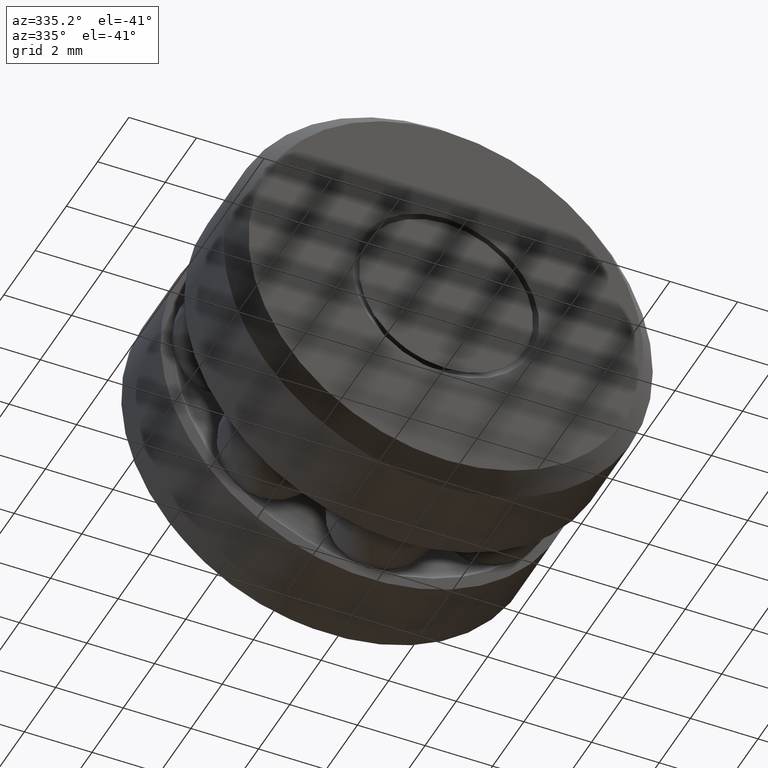
[diagram: clean part render]
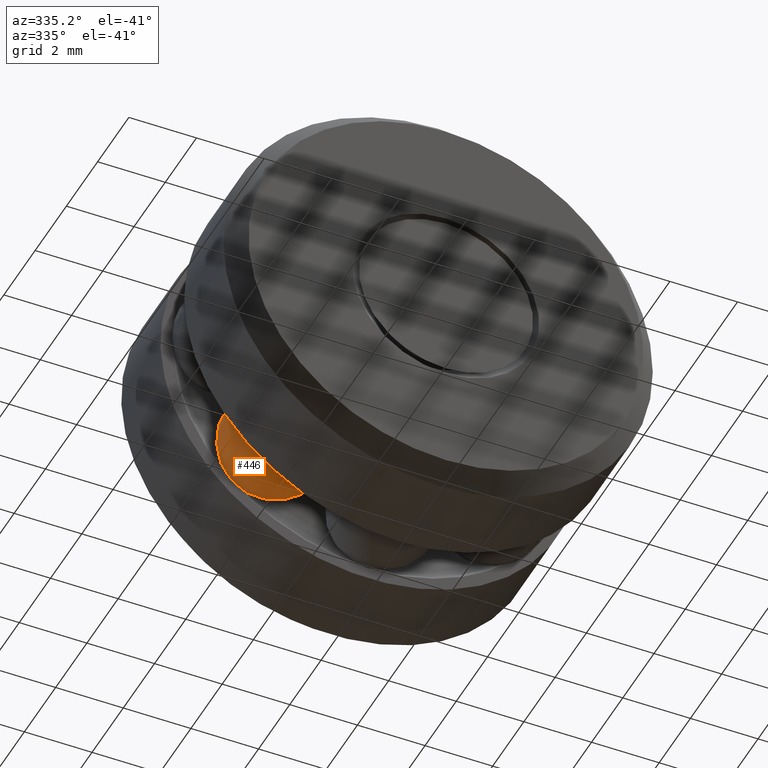
[diagram: same view with one face highlighted and labeled with its STEP entity id]
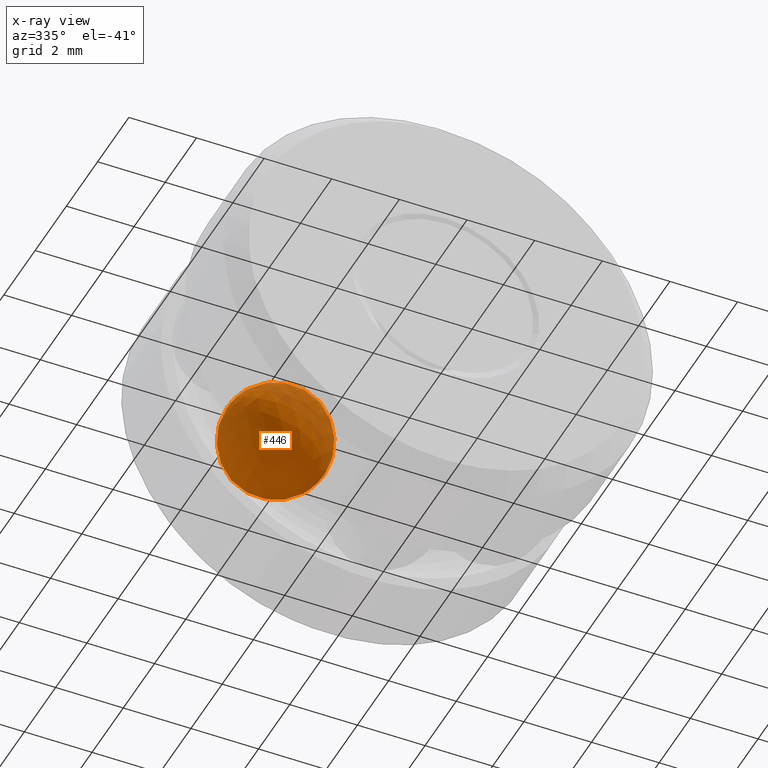
[diagram: x-ray of the same camera — body ghosted, the highlighted face saturated]
A machine part, auxiliary view. The second image highlights one B-rep face of the part: STEP entity #446.
The next image is the same camera in x-ray: the body ghosted, the highlighted face saturated — about 19% of this face is hidden behind the body in this view.
In plain terms, the highlighted spherical surface has radius 1.5875 mm.
Its self-contained STEP definition (entity closure, byte-faithful):
#67 = DIRECTION ( 'NONE',  ( 0.7071067811865389100, 0.0000000000000000000, -0.7071067811865561200 ) ) ;
#101 = SPHERICAL_SURFACE ( 'NONE', #496, 0.06250000000000001400 ) ;
#171 = CARTESIAN_POINT ( 'NONE',  ( -0.1262185604418002100, 0.1562500000000000000, -0.1262185604417971600 ) ) ;
#299 = DIRECTION ( 'NONE',  ( 0.7071067811865561200, 0.0000000000000000000, 0.7071067811865389100 ) ) ;
#446 = ADVANCED_FACE ( 'NONE', ( ), #101, .T. ) ;
#496 = AXIS2_PLACEMENT_3D ( 'NONE', #171, #67, #299 ) ;